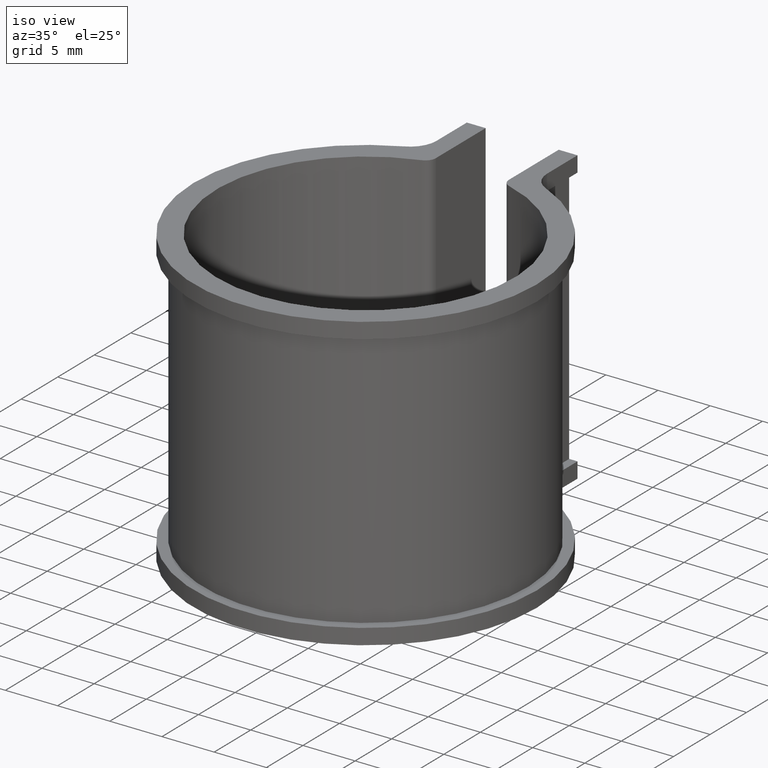
[diagram: clean part render]
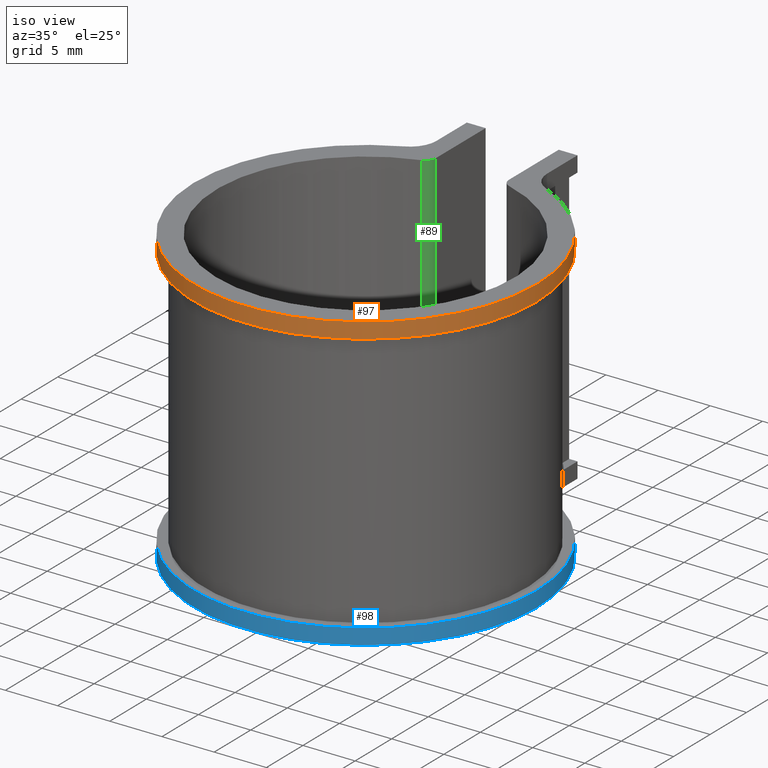
[diagram: same view with three faces highlighted in distinct colors, each labeled with its STEP entity id]
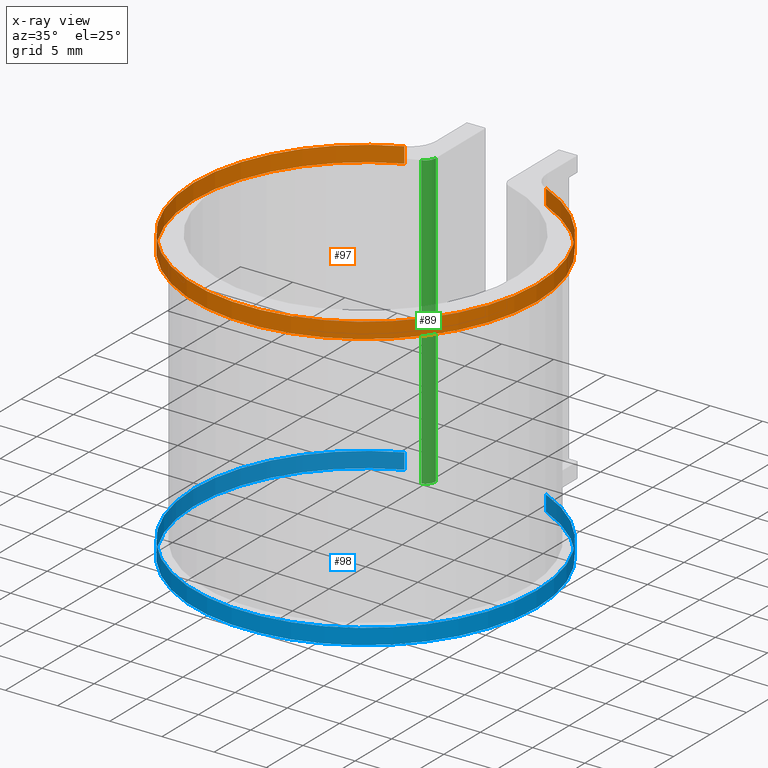
[diagram: x-ray of the same camera — body ghosted, the three highlighted faces saturated]
A machine part, iso view with three faces highlighted in distinct colors.
The next image is the same camera in x-ray (body ghosted, the three faces saturated) — at least one of them is partly hidden behind the body in this view.
Their STEP definitions:

[orange] entity #97 — the highlighted cylindrical surface (partial cylindrical patch) has radius 16.44 mm, axis along (0, 0, 1).
#97 = ADVANCED_FACE( '', ( #146 ), #147, .T. );
#146 = FACE_OUTER_BOUND( '', #198, .T. );
#147 = CYLINDRICAL_SURFACE( '', #199, 16.4400000000000 );
#198 = EDGE_LOOP( '', ( #400, #401, #402, #403 ) );
#199 = AXIS2_PLACEMENT_3D( '', #404, #405, #406 );
#400 = ORIENTED_EDGE( '', *, *, #462, .T. );
#401 = ORIENTED_EDGE( '', *, *, #476, .T. );
#402 = ORIENTED_EDGE( '', *, *, #471, .F. );
#403 = ORIENTED_EDGE( '', *, *, #493, .T. );
#404 = CARTESIAN_POINT( '', ( 0.000000000000000, 0.000000000000000, 1.50000000000000 ) );
#405 = DIRECTION( '', ( 0.000000000000000, 0.000000000000000, 1.00000000000000 ) );
#406 = DIRECTION( '', ( 0.000000000000000, -1.00000000000000, 0.000000000000000 ) );
#462 = EDGE_CURVE( '', #565, #563, #566, .T. );
#471 = EDGE_CURVE( '', #579, #581, #582, .T. );
#476 = EDGE_CURVE( '', #563, #581, #589, .F. );
#493 = EDGE_CURVE( '', #579, #565, #613, .T. );
#563 = VERTEX_POINT( '', #707 );
#565 = VERTEX_POINT( '', #709 );
#566 = CIRCLE( '', #710, 16.4400000000000 );
#579 = VERTEX_POINT( '', #727 );
#581 = VERTEX_POINT( '', #729 );
#582 = CIRCLE( '', #730, 16.4400000000000 );
#589 = LINE( '', #739, #740 );
#613 = LINE( '', #774, #775 );
#707 = CARTESIAN_POINT( '', ( 6.77043294614572, 14.9811494125699, 0.000000000000000 ) );
#709 = CARTESIAN_POINT( '', ( -6.77043294614572, 14.9811494125699, 0.000000000000000 ) );
#710 = AXIS2_PLACEMENT_3D( '', #842, #843, #844 );
#727 = CARTESIAN_POINT( '', ( -6.77043294614572, 14.9811494125699, 1.50000000000000 ) );
#729 = CARTESIAN_POINT( '', ( 6.77043294614572, 14.9811494125699, 1.50000000000000 ) );
#730 = AXIS2_PLACEMENT_3D( '', #861, #862, #863 );
#739 = CARTESIAN_POINT( '', ( 6.77043294614572, 14.9811494125699, 1.50000000000000 ) );
#740 = VECTOR( '', #872, 1000.00000000000 );
#774 = CARTESIAN_POINT( '', ( -6.77043294614573, 14.9811494125699, 1.50000000000000 ) );
#775 = VECTOR( '', #901, 1000.00000000000 );
#842 = CARTESIAN_POINT( '', ( 0.000000000000000, 0.000000000000000, 0.000000000000000 ) );
#843 = DIRECTION( '', ( 0.000000000000000, 0.000000000000000, 1.00000000000000 ) );
#844 = DIRECTION( '', ( 1.00000000000000, 0.000000000000000, 0.000000000000000 ) );
#861 = CARTESIAN_POINT( '', ( 0.000000000000000, 0.000000000000000, 1.50000000000000 ) );
#862 = DIRECTION( '', ( 0.000000000000000, 0.000000000000000, 1.00000000000000 ) );
#863 = DIRECTION( '', ( 1.00000000000000, 0.000000000000000, 0.000000000000000 ) );
#872 = DIRECTION( '', ( 0.000000000000000, 0.000000000000000, -1.00000000000000 ) );
#901 = DIRECTION( '', ( 0.000000000000000, 0.000000000000000, -1.00000000000000 ) );

[blue] entity #98 — the highlighted cylindrical surface (partial cylindrical patch) has radius 16.44 mm, axis along (0, 0, -1).
#98 = ADVANCED_FACE( '', ( #148 ), #149, .T. );
#148 = FACE_OUTER_BOUND( '', #200, .T. );
#149 = CYLINDRICAL_SURFACE( '', #201, 16.4400000000000 );
#200 = EDGE_LOOP( '', ( #407, #408, #409, #410 ) );
#201 = AXIS2_PLACEMENT_3D( '', #411, #412, #413 );
#407 = ORIENTED_EDGE( '', *, *, #489, .T. );
#408 = ORIENTED_EDGE( '', *, *, #496, .T. );
#409 = ORIENTED_EDGE( '', *, *, #438, .F. );
#410 = ORIENTED_EDGE( '', *, *, #494, .T. );
#411 = CARTESIAN_POINT( '', ( 0.000000000000000, 0.000000000000000, -26.5000000000000 ) );
#412 = DIRECTION( '', ( 0.000000000000000, 0.000000000000000, -1.00000000000000 ) );
#413 = DIRECTION( '', ( 0.000000000000000, 1.00000000000000, 0.000000000000000 ) );
#438 = EDGE_CURVE( '', #519, #521, #522, .T. );
#489 = EDGE_CURVE( '', #608, #606, #609, .T. );
#494 = EDGE_CURVE( '', #519, #608, #614, .F. );
#496 = EDGE_CURVE( '', #606, #521, #616, .T. );
#519 = VERTEX_POINT( '', #646 );
#521 = VERTEX_POINT( '', #648 );
#522 = CIRCLE( '', #649, 16.4400000000000 );
#606 = VERTEX_POINT( '', #765 );
#608 = VERTEX_POINT( '', #767 );
#609 = CIRCLE( '', #768, 16.4400000000000 );
#614 = LINE( '', #776, #777 );
#616 = LINE( '', #780, #781 );
#646 = CARTESIAN_POINT( '', ( -6.77043294614572, 14.9811494125699, -25.0000000000000 ) );
#648 = CARTESIAN_POINT( '', ( 6.77043294614572, 14.9811494125699, -25.0000000000000 ) );
#649 = AXIS2_PLACEMENT_3D( '', #804, #805, #806 );
#765 = CARTESIAN_POINT( '', ( 6.77043294614572, 14.9811494125699, -26.5000000000000 ) );
#767 = CARTESIAN_POINT( '', ( -6.77043294614572, 14.9811494125699, -26.5000000000000 ) );
#768 = AXIS2_PLACEMENT_3D( '', #893, #894, #895 );
#776 = CARTESIAN_POINT( '', ( -6.77043294614573, 14.9811494125699, -26.5000000000000 ) );
#777 = VECTOR( '', #902, 1000.00000000000 );
#780 = CARTESIAN_POINT( '', ( 6.77043294614572, 14.9811494125699, -26.5000000000000 ) );
#781 = VECTOR( '', #904, 1000.00000000000 );
#804 = CARTESIAN_POINT( '', ( 0.000000000000000, 0.000000000000000, -25.0000000000000 ) );
#805 = DIRECTION( '', ( 0.000000000000000, 0.000000000000000, 1.00000000000000 ) );
#806 = DIRECTION( '', ( 1.00000000000000, 0.000000000000000, 0.000000000000000 ) );
#893 = CARTESIAN_POINT( '', ( 0.000000000000000, 0.000000000000000, -26.5000000000000 ) );
#894 = DIRECTION( '', ( 0.000000000000000, 0.000000000000000, 1.00000000000000 ) );
#895 = DIRECTION( '', ( 1.00000000000000, 0.000000000000000, 0.000000000000000 ) );
#902 = DIRECTION( '', ( 0.000000000000000, 0.000000000000000, 1.00000000000000 ) );
#904 = DIRECTION( '', ( 0.000000000000000, 0.000000000000000, 1.00000000000000 ) );

[green] entity #89 — the highlighted cylindrical surface (edge-blend (fillet) strip) has radius 1 mm, axis along (0, 0, -1).
#89 = ADVANCED_FACE( '', ( #130 ), #131, .T. );
#130 = FACE_OUTER_BOUND( '', #182, .T. );
#131 = CYLINDRICAL_SURFACE( '', #183, 1.00000000000000 );
#182 = EDGE_LOOP( '', ( #344, #345, #346, #347 ) );
#183 = AXIS2_PLACEMENT_3D( '', #348, #349, #350 );
#344 = ORIENTED_EDGE( '', *, *, #485, .F. );
#345 = ORIENTED_EDGE( '', *, *, #492, .F. );
#346 = ORIENTED_EDGE( '', *, *, #468, .F. );
#347 = ORIENTED_EDGE( '', *, *, #491, .F. );
#348 = CARTESIAN_POINT( '', ( -4.50000000000000, 14.6128060275910, -25.0000000000000 ) );
#349 = DIRECTION( '', ( 0.000000000000000, 0.000000000000000, -1.00000000000000 ) );
#350 = DIRECTION( '', ( 1.00000000000000, 0.000000000000000, 0.000000000000000 ) );
#468 = EDGE_CURVE( '', #574, #576, #577, .T. );
#485 = EDGE_CURVE( '', #599, #601, #602, .F. );
#491 = EDGE_CURVE( '', #601, #574, #611, .T. );
#492 = EDGE_CURVE( '', #576, #599, #612, .F. );
#574 = VERTEX_POINT( '', #721 );
#576 = VERTEX_POINT( '', #723 );
#577 = CIRCLE( '', #724, 1.00000000000000 );
#599 = VERTEX_POINT( '', #756 );
#601 = VERTEX_POINT( '', #759 );
#602 = CIRCLE( '', #760, 1.00000000000000 );
#611 = LINE( '', #770, #771 );
#612 = LINE( '', #772, #773 );
#721 = CARTESIAN_POINT( '', ( -4.20568999345977, 13.6570960192463, 1.50000000000000 ) );
#723 = CARTESIAN_POINT( '', ( -3.50000000000000, 14.6128060275910, 1.50000000000000 ) );
#724 = AXIS2_PLACEMENT_3D( '', #854, #855, #856 );
#756 = CARTESIAN_POINT( '', ( -3.50000000000000, 14.6128060275910, -26.5000000000000 ) );
#759 = CARTESIAN_POINT( '', ( -4.20568999345977, 13.6570960192463, -26.5000000000000 ) );
#760 = AXIS2_PLACEMENT_3D( '', #883, #884, #885 );
#770 = CARTESIAN_POINT( '', ( -4.20568999345978, 13.6570960192463, -25.0000000000000 ) );
#771 = VECTOR( '', #899, 1000.00000000000 );
#772 = CARTESIAN_POINT( '', ( -3.50000000000000, 14.6128060275910, -25.0000000000000 ) );
#773 = VECTOR( '', #900, 1000.00000000000 );
#854 = CARTESIAN_POINT( '', ( -4.50000000000000, 14.6128060275910, 1.50000000000000 ) );
#855 = DIRECTION( '', ( 0.000000000000000, 0.000000000000000, 1.00000000000000 ) );
#856 = DIRECTION( '', ( 1.00000000000000, 0.000000000000000, 0.000000000000000 ) );
#883 = CARTESIAN_POINT( '', ( -4.50000000000000, 14.6128060275910, -26.5000000000000 ) );
#884 = DIRECTION( '', ( 0.000000000000000, 0.000000000000000, 1.00000000000000 ) );
#885 = DIRECTION( '', ( 1.00000000000000, 0.000000000000000, 0.000000000000000 ) );
#899 = DIRECTION( '', ( 0.000000000000000, 0.000000000000000, 1.00000000000000 ) );
#900 = DIRECTION( '', ( 0.000000000000000, 0.000000000000000, 1.00000000000000 ) );